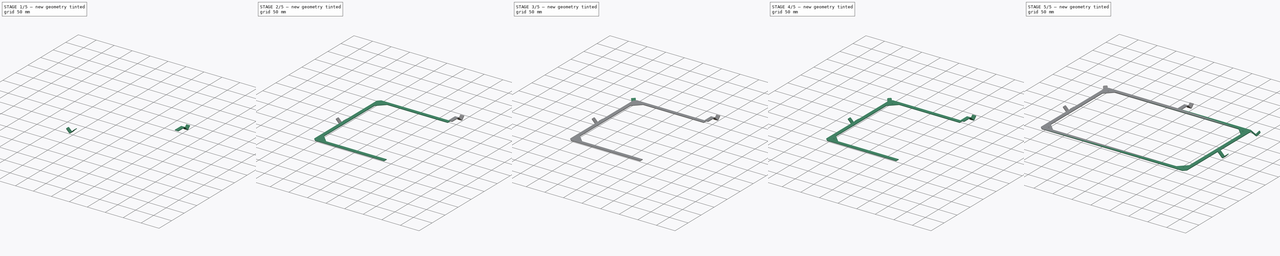
[diagram: build sequence overview — one tinted view per stage of 5, left to right]
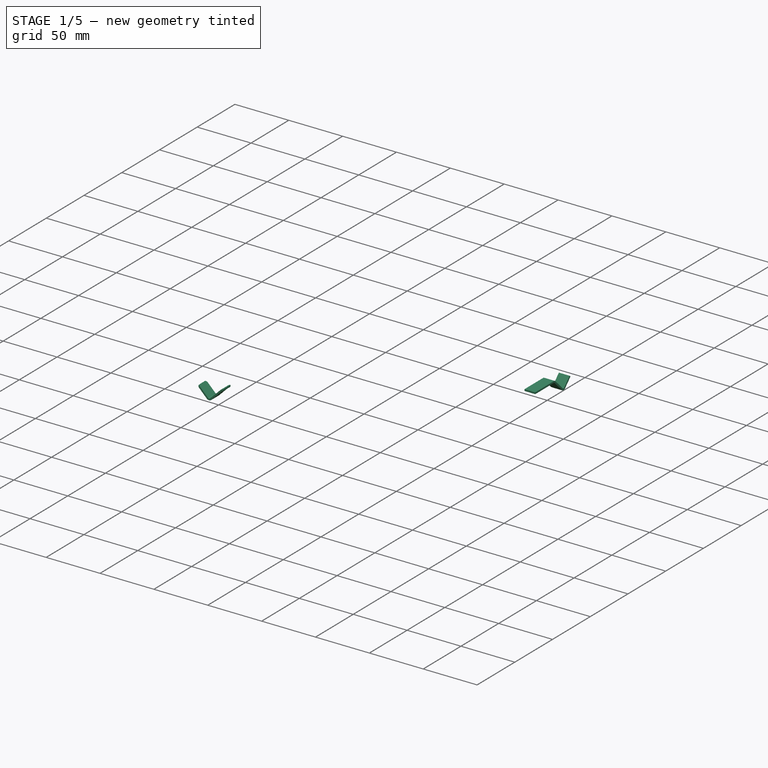
[diagram: stage 1 of 5 — iso view after this stage's code; geometry added in this stage tinted green]
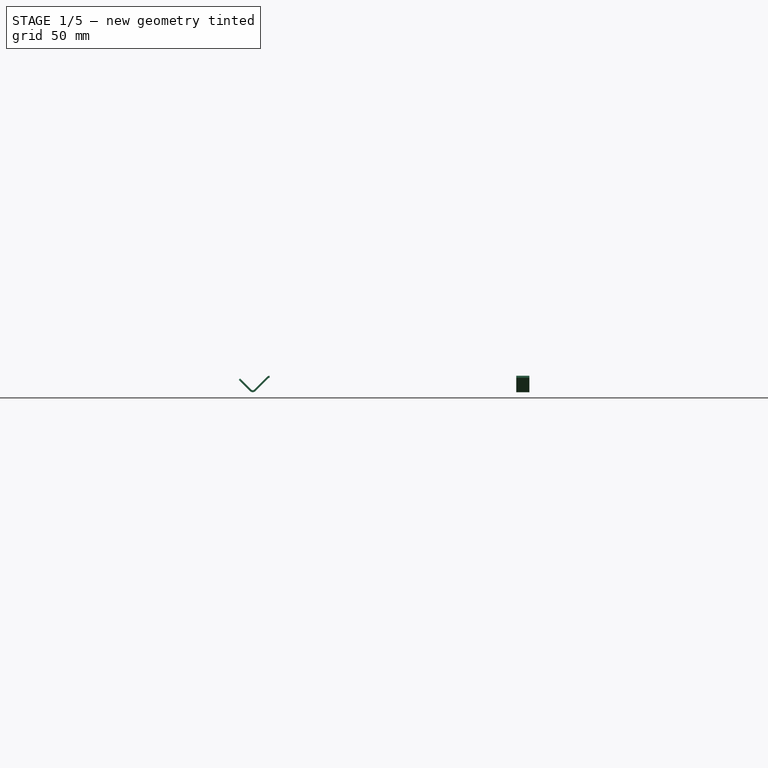
[diagram: stage 1 of 5 — front view after this stage's code; geometry added in this stage tinted green]
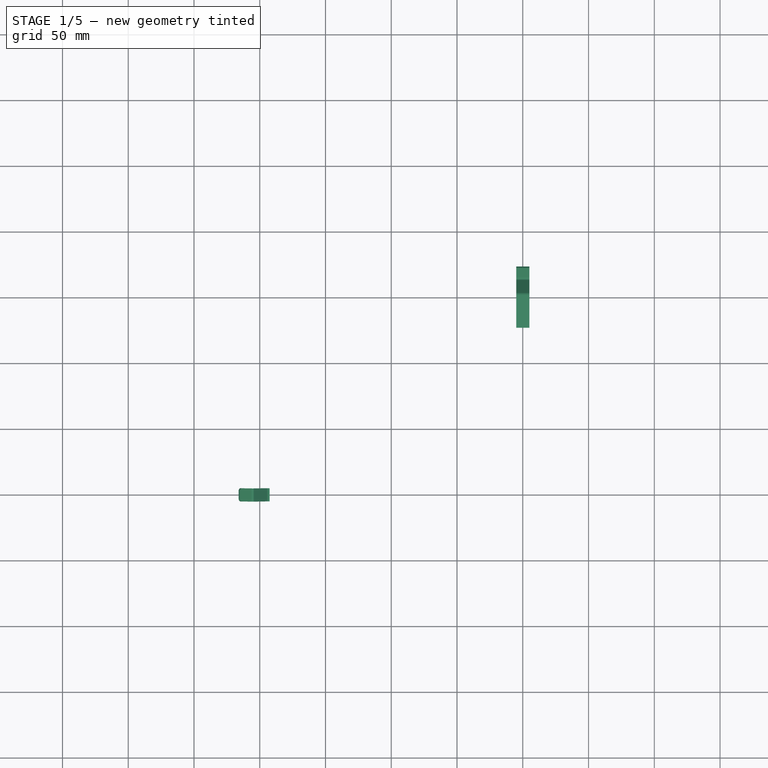
[diagram: stage 1 of 5 — top view after this stage's code; geometry added in this stage tinted green]
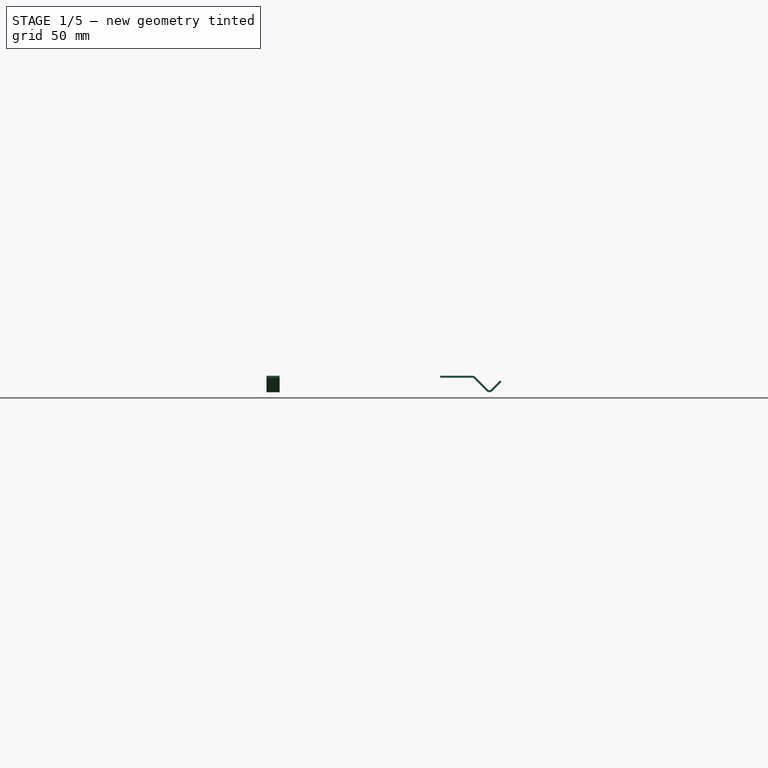
[diagram: stage 1 of 5 — right view after this stage's code; geometry added in this stage tinted green]
FCSTD DOCUMENT  (FreeCAD 0.14R3310 (Git))
Label: CHAPA SUPERIOR SUJETA TAPA
License: CC-BY 3.0
LicenseURL: http://creativecommons.org/licenses/by/3.0/
objects: Sketcher::SketchObject×7, PartDesign::Pad×5, Part::MultiFuse×3, PartDesign::Chamfer×2, PartDesign::Pocket×2, PartDesign::Fillet×2, Part::Mirroring×1
note: 29 computed .brp shape members not serialized (recipe doc carries the construction recipe); baked Part::Feature solids carry a one-line shape summary decoded from their .brp

FEATURE [Sketcher::SketchObject] Sketch005
  Placement = pos=(0,0,0) rot=(-1,0,0;4.71239rad)
  sketch-geometry (10):
    g0: LineSegment StartX=-192.5 StartY=1.5 StartZ=0 EndX=-192.5 EndY=0 EndZ=0
    g1: ArcOfCircle CenterX=-192.5 CenterY=-1.5 CenterZ=0 NormalX=0 NormalY=0 NormalZ=1 Radius=1.5 StartAngle=1.5708 EndAngle=2.3562
    g2: ArcOfCircle CenterX=-192.5 CenterY=-1.5 CenterZ=0 NormalX=0 NormalY=0 NormalZ=1 Radius=3 StartAngle=1.5708 EndAngle=2.35619
    g3: LineSegment StartX=-193.561 StartY=-0.439341 StartZ=0 EndX=-203.242 EndY=-10.121 EndZ=0
    g4: LineSegment StartX=-194.621 StartY=0.62132 StartZ=0 EndX=-204.303 EndY=-9.06039 EndZ=0
    g5: ArcOfCircle CenterX=-205.364 CenterY=-7.99972 CenterZ=0 NormalX=0 NormalY=0 NormalZ=1 Radius=1.5 StartAngle=3.92699 EndAngle=5.49778
    g6: LineSegment StartX=-206.424 StartY=-9.06038 StartZ=0 EndX=-214.985 EndY=-0.499437 EndZ=0
    g7: LineSegment StartX=-214.985 StartY=-0.499437 StartZ=0 EndX=-216.046 EndY=-1.5601 EndZ=0
    g8: LineSegment StartX=-216.046 StartY=-1.5601 StartZ=0 EndX=-207.485 EndY=-10.121 EndZ=0
    g9: ArcOfCircle CenterX=-205.364 CenterY=-7.99972 CenterZ=0 NormalX=0 NormalY=0 NormalZ=1 Radius=3 StartAngle=3.92699 EndAngle=5.49779
  constraints (32):
    c: Vertical(g0)
    c: DistanceX(g-2,g0) = -192.5
    c: DistanceY(g0) = -1.5
    c: PointOnObject(g0,g-1)
    c: Coincident(g1,g0)
    c: Tangent(g1,g-1)
    c: Radius(g1) = 1.5
    c: Coincident(g2,g1)
    c: Coincident(g2,g0)
    c: Coincident(g3,g1)
    c: Tangent(g1,g3)
    c: Angle(g3,g-1) = 2.35619
    c: Coincident(g4,g2)
    c: Parallel(g3,g4)
    c: Tangent(g2,g4)
    c: Distance(g4) = 13.692
    c: Coincident(g5,g4)
    c: Tangent(g5,g4)
    c: Coincident(g6,g5)
    c: Angle(g4,g6) = 1.5708
    c: Tangent(g6,g5)
    c: Radius(g5) = 1.5
    c: Distance(g6) = 12.107
    c: Coincident(g7,g6)
    c: Angle(g7,g6) = 1.5708
    c: Distance(g7) = 1.5
    c: Coincident(g8,g7)
    c: Parallel(g8,g6)
    c: Coincident(g9,g5)
    c: Tangent(g9,g8)
    c: Coincident(g9,g8)
    c: Coincident(g9,g3)
FEATURE [PartDesign::Pad] Pad003
  Length = 10
  Length2 = 100
  Midplane = true
  Placement = pos=(0,0,0) rot=(-1,0,0;4.71239rad)
  Sketch = -> Sketch005
  Type = 0
FEATURE [PartDesign::Fillet] Fillet001
  Base = -> Pad003 [Edge19,Edge18]
  Placement = pos=(0,0,0) rot=(-1,0,0;4.71239rad)
  Radius = 2
FEATURE [Sketcher::SketchObject] Sketch006
  Placement = pos=(0,0,0) rot=(0.57735,0.57735,0.57735;2.0944rad)
  sketch-geometry (12):
    g0: LineSegment StartX=127 StartY=1.5 StartZ=0 EndX=127 EndY=0 EndZ=0
    g1: LineSegment StartX=127 StartY=0 StartZ=0 EndX=151.636 EndY=0 EndZ=0
    g2: LineSegment StartX=127 StartY=1.5 StartZ=0 EndX=151.636 EndY=1.5 EndZ=0
    g3: ArcOfCircle CenterX=151.636 CenterY=-1.5 CenterZ=0 NormalX=0 NormalY=0 NormalZ=1 Radius=1.5 StartAngle=0.785398 EndAngle=1.5708
    g4: LineSegment StartX=152.697 StartY=-0.43934 StartZ=0 EndX=162.378 EndY=-10.121 EndZ=0
    g5: ArcOfCircle CenterX=151.636 CenterY=-1.5 CenterZ=0 NormalX=0 NormalY=0 NormalZ=1 Radius=3 StartAngle=0.785398 EndAngle=1.5708
    g6: LineSegment StartX=153.757 StartY=0.621321 StartZ=0 EndX=163.439 EndY=-9.06039 EndZ=0
    g7: ArcOfCircle CenterX=164.5 CenterY=-7.99972 CenterZ=0 NormalX=0 NormalY=0 NormalZ=1 Radius=1.5 StartAngle=3.92699 EndAngle=5.49779
    g8: ArcOfCircle CenterX=164.5 CenterY=-7.99972 CenterZ=0 NormalX=0 NormalY=0 NormalZ=1 Radius=3 StartAngle=3.92699 EndAngle=5.49779
    g9: LineSegment StartX=165.56 StartY=-9.06038 StartZ=0 EndX=172.621 EndY=-1.99992 EndZ=0
    g10: LineSegment StartX=166.621 StartY=-10.121 StartZ=0 EndX=173.681 EndY=-3.06058 EndZ=0
    g11: LineSegment StartX=173.681 StartY=-3.06058 StartZ=0 EndX=172.621 EndY=-1.99992 EndZ=0
  constraints (39):
    c: Vertical(g0)
    c: DistanceY(g0) = -1.5
    c: PointOnObject(g0,g-1)
    c: DistanceX(g-2,g0) = 127
    c: Horizontal(g1)
    c: Coincident(g1,g0)
    c: DistanceX(g1) = 24.636
    c: Coincident(g2,g0)
    c: Horizontal(g2)
    c: Equal(g2,g1)
    c: Coincident(g3,g1)
    c: Tangent(g3,g1)
    c: Coincident(g4,g3)
    c: Angle(g-1,g4) = 2.35619
    c: Tangent(g3,g4)
    c: Radius(g3) = 1.5
    c: Distance(g4) = 13.692
    c: Coincident(g5,g3)
    c: Coincident(g5,g2)
    c: Coincident(g6,g5)
    c: Equal(g6,g4)
    c: Parallel(g6,g4)
    c: Tangent(g5,g6)
    c: Coincident(g7,g6)
    c: Tangent(g7,g6)
    c: Coincident(g8,g7)
    c: Coincident(g8,g4)
    c: Radius(g7) = 1.5
    c: Angle(g7,g6) = 1.5708
    c: Coincident(g9,g7)
    c: Angle(g9,g6) = 1.5708
    c: Tangent(g7,g9)
    c: Distance(g9) = 9.985
    c: Coincident(g10,g8)
    c: Parallel(g9,g10)
    c: Equal(g10,g9)
    c: Tangent(g8,g10)
    c: Coincident(g11,g10)
    c: Coincident(g11,g9)
FEATURE [PartDesign::Pad] Pad004
  Length = 10
  Length2 = 100
  Midplane = true
  Placement = pos=(0,0,0) rot=(0.57735,0.57735,0.57735;2.0944rad)
  Sketch = -> Sketch006
  Type = 0
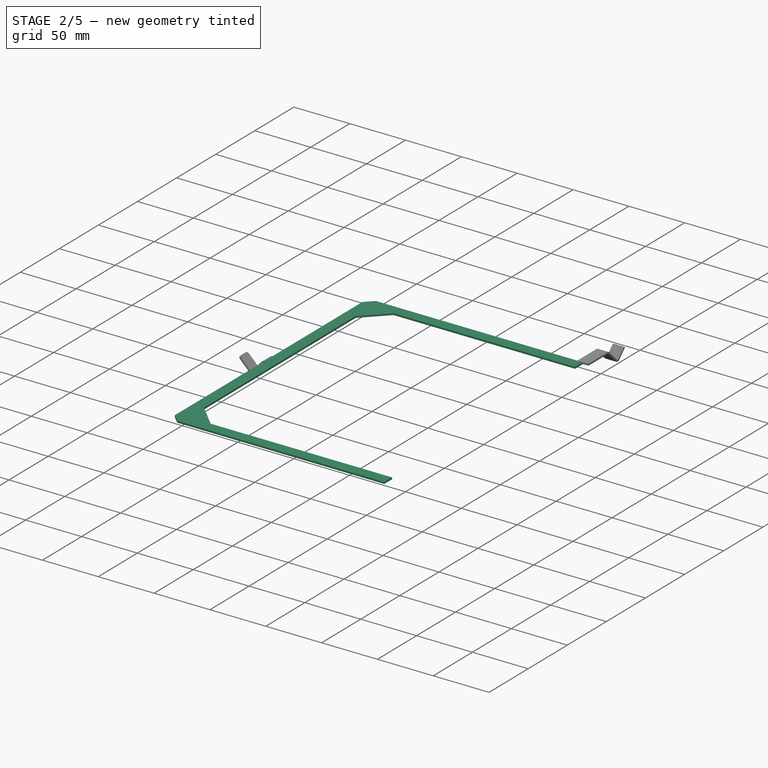
[diagram: stage 2 of 5 — iso view after this stage's code; geometry added in this stage tinted green]
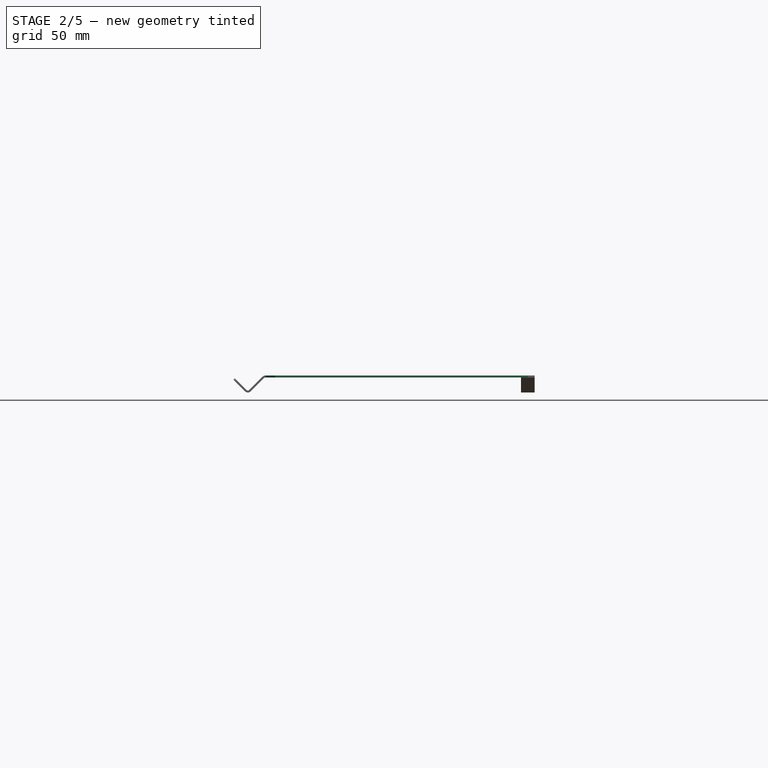
[diagram: stage 2 of 5 — front view after this stage's code; geometry added in this stage tinted green]
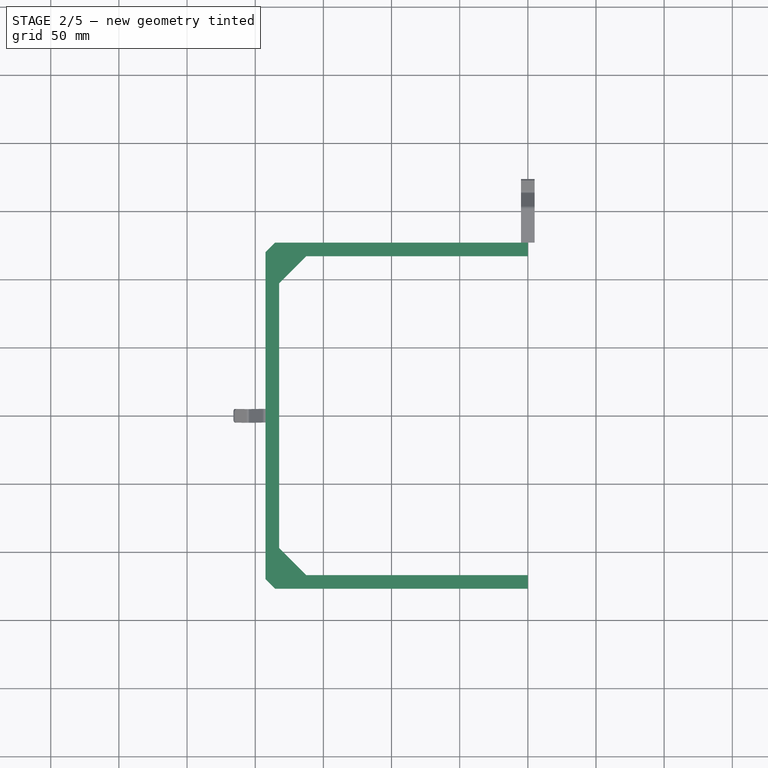
[diagram: stage 2 of 5 — top view after this stage's code; geometry added in this stage tinted green]
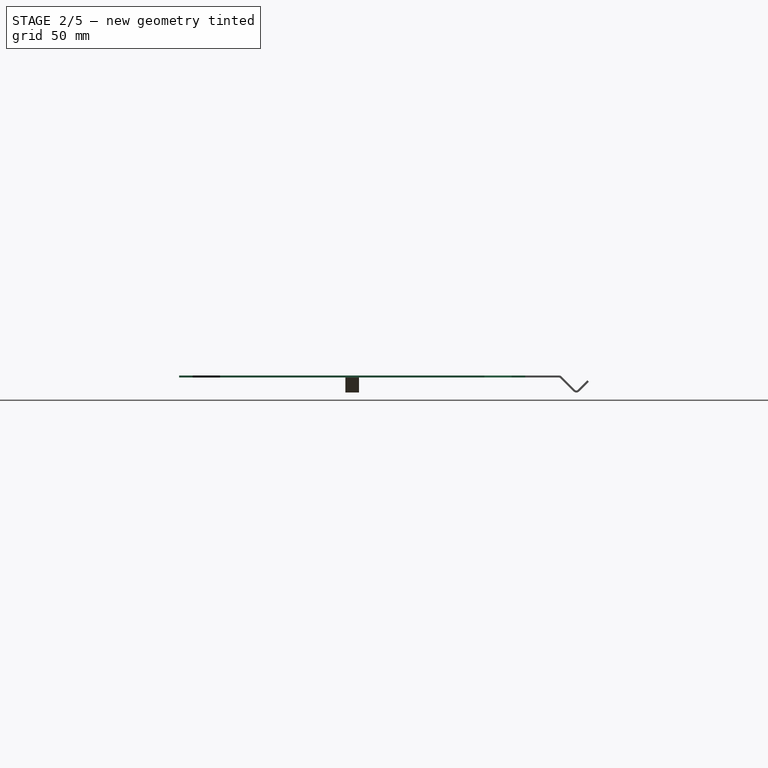
[diagram: stage 2 of 5 — right view after this stage's code; geometry added in this stage tinted green]
FEATURE [Sketcher::SketchObject] Sketch
  sketch-geometry (9):
    g0: LineSegment StartX=-192.5 StartY=127 StartZ=0 EndX=0 EndY=127 EndZ=0
    g1: LineSegment [constr] StartX=0 StartY=127 StartZ=0 EndX=0 EndY=-127 EndZ=0
    g2: LineSegment StartX=0 StartY=-127 StartZ=0 EndX=-192.5 EndY=-127 EndZ=0
    g3: LineSegment StartX=-192.5 StartY=-127 StartZ=0 EndX=-192.5 EndY=127 EndZ=0
    g4: LineSegment StartX=0 StartY=117 StartZ=0 EndX=-182.5 EndY=117 EndZ=0
    g5: LineSegment StartX=-182.5 StartY=117 StartZ=0 EndX=-182.5 EndY=-117 EndZ=0
    g6: LineSegment StartX=-182.5 StartY=-117 StartZ=0 EndX=0 EndY=-117 EndZ=0
    g7: LineSegment StartX=0 StartY=117 StartZ=0 EndX=0 EndY=127 EndZ=0
    g8: LineSegment StartX=0 StartY=-127 StartZ=0 EndX=0 EndY=-117 EndZ=0
  constraints (25):
    c: Coincident(g0,g1)
    c: Coincident(g1,g2)
    c: Coincident(g2,g3)
    c: Coincident(g3,g0)
    c: Horizontal(g0)
    c: Horizontal(g2)
    c: Vertical(g3)
    c: PointOnObject(g1,g-2)
    c: Symmetric(g1,g0,g-1)
    c: DistanceX(g0) = 192.5
    c: DistanceY(g3) = 254
    c: PointOnObject(g4,g1)
    c: Horizontal(g4)
    c: Coincident(g5,g4)
    c: Vertical(g5)
    c: Coincident(g6,g5)
    c: PointOnObject(g6,g1)
    c: Horizontal(g6)
    c: DistanceY(g5) = -234
    c: Symmetric(g4,g6,g-1)
    c: DistanceX(g4) = -182.5
    c: Coincident(g7,g4)
    c: Coincident(g7,g0)
    c: Coincident(g8,g1)
    c: Coincident(g8,g6)
FEATURE [PartDesign::Pad] Pad
  Length = 1.5
  Length2 = 100
  Sketch = -> Sketch
  Type = 0
FEATURE [PartDesign::Chamfer] Chamfer
  Base = -> Pad [Edge14,Edge17]
  Size = 20
FEATURE [PartDesign::Chamfer] Chamfer001
  Base = -> Chamfer [Edge28,Edge26]
  Size = 7.07
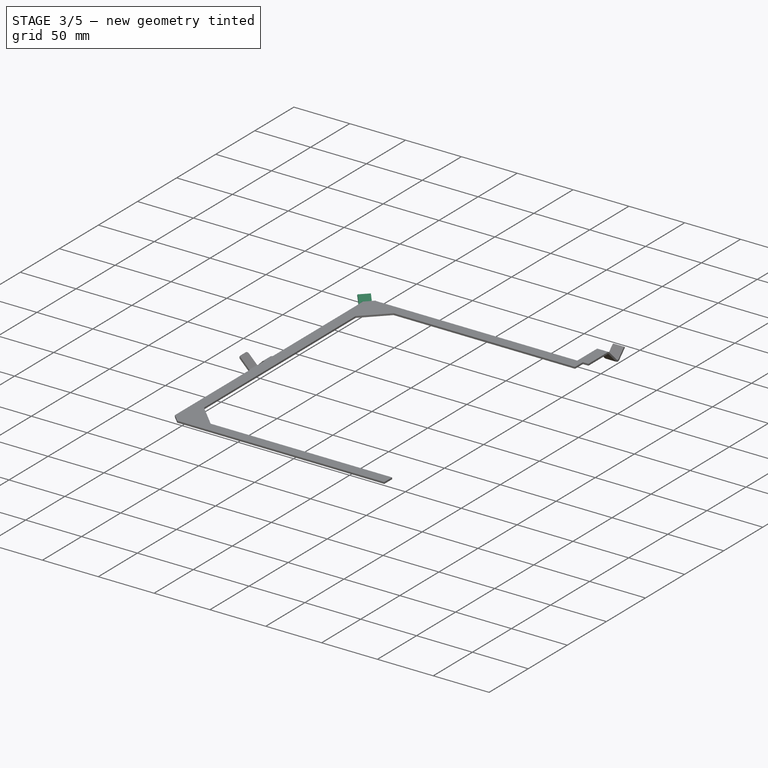
[diagram: stage 3 of 5 — iso view after this stage's code; geometry added in this stage tinted green]
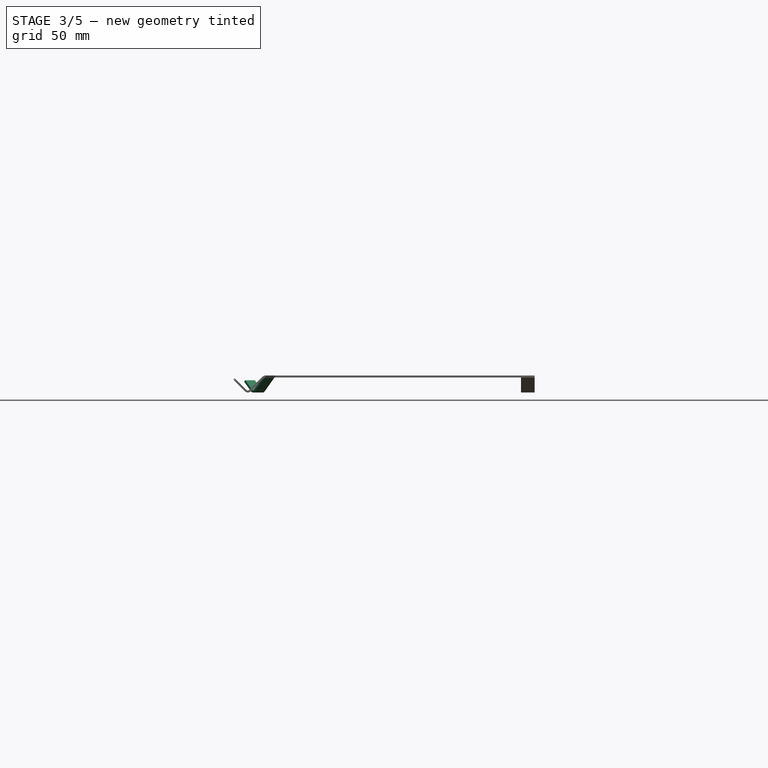
[diagram: stage 3 of 5 — front view after this stage's code; geometry added in this stage tinted green]
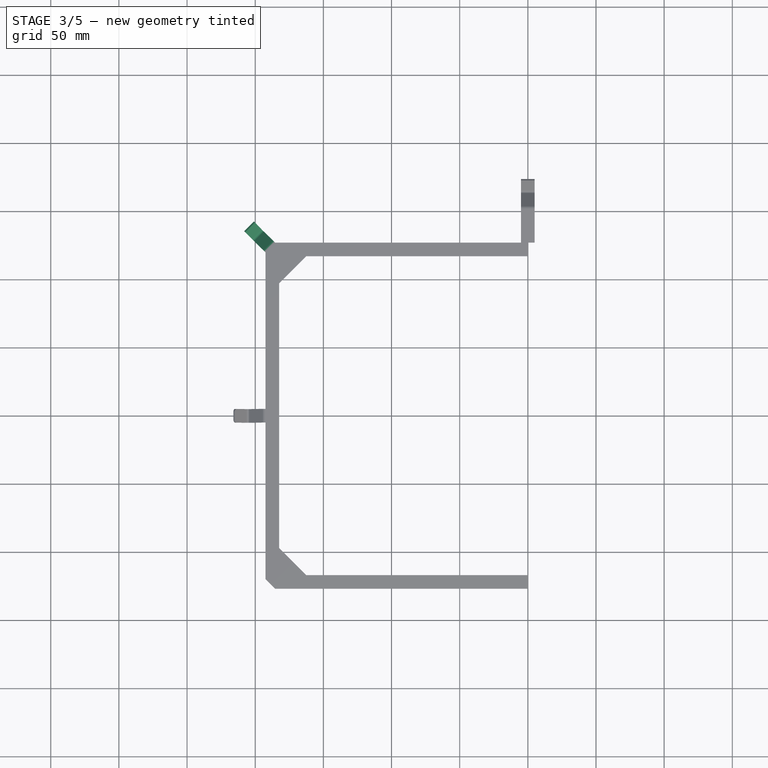
[diagram: stage 3 of 5 — top view after this stage's code; geometry added in this stage tinted green]
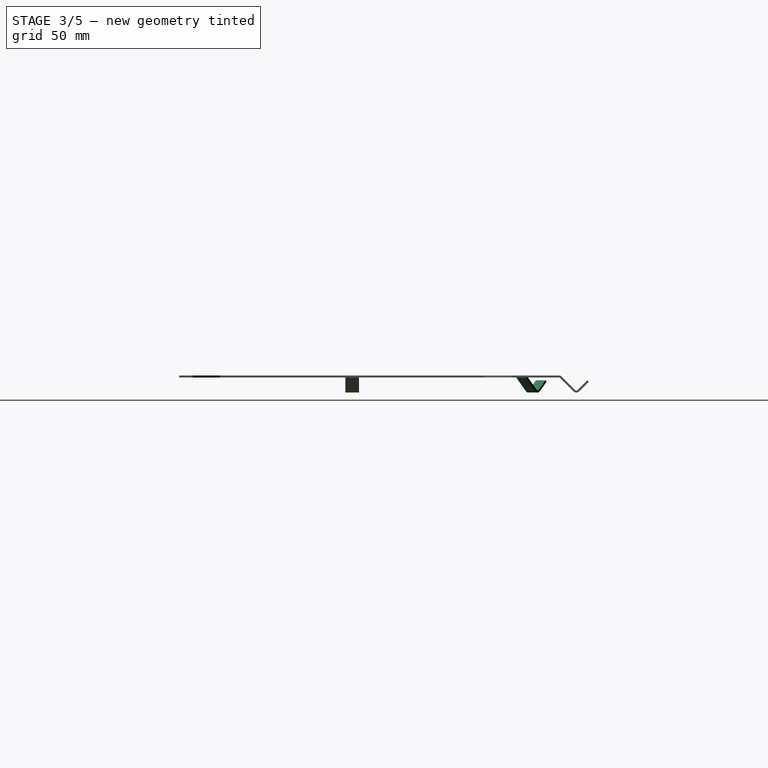
[diagram: stage 3 of 5 — right view after this stage's code; geometry added in this stage tinted green]
FEATURE [Sketcher::SketchObject] Sketch001
  ExternalGeometry = -> [Chamfer001]
  Placement = pos=(-156.215,156.215,0) rot=(-0.281085,0.678598,0.678598;3.68962rad)
  Support = -> Chamfer001 [Face3]
  sketch-geometry (4):
    g0: LineSegment StartX=41.3162 StartY=0 StartZ=0 EndX=51.3162 EndY=0 EndZ=0
    g1: LineSegment StartX=51.3162 StartY=0 StartZ=0 EndX=51.3162 EndY=1.5 EndZ=0
    g2: LineSegment StartX=51.3162 StartY=1.5 StartZ=0 EndX=41.3162 EndY=1.5 EndZ=0
    g3: LineSegment StartX=41.3162 StartY=1.5 StartZ=0 EndX=41.3162 EndY=0 EndZ=0
  constraints (11):
    c: Coincident(g0,g1)
    c: Coincident(g1,g2)
    c: Coincident(g2,g3)
    c: Coincident(g3,g0)
    c: Horizontal(g0)
    c: Horizontal(g2)
    c: Vertical(g1)
    c: Vertical(g3)
    c: Coincident(g0,g-3)
    c: DistanceX(g0) = 10
    c: Coincident(g-3,g2)
FEATURE [PartDesign::Pad] Pad001
  Length = 1.5
  Length2 = 100
  Sketch = -> Sketch001
  Type = 0
FEATURE [Sketcher::SketchObject] Sketch002
  ExternalGeometry = -> [Pad001]
  Placement = pos=(-29.215,-29.215,0) rot=(0.281085,0.678598,0.678598;2.59356rad)
  Support = -> Pad001 [Face3]
  sketch-geometry (3):
    g0: LineSegment StartX=220.921 StartY=1.5 StartZ=0 EndX=225.921 EndY=-3.5 EndZ=0
    g1: LineSegment StartX=220.921 StartY=1.5 StartZ=0 EndX=225.921 EndY=1.5 EndZ=0
    g2: LineSegment StartX=225.921 StartY=1.5 StartZ=0 EndX=225.921 EndY=-3.5 EndZ=0
  constraints (8):
    c: Coincident(g0,g-3)
    c: Coincident(g1,g0)
    c: Horizontal(g1)
    c: Coincident(g2,g1)
    c: Coincident(g2,g0)
    c: Vertical(g2)
    c: DistanceX(g1) = 5
    c: DistanceY(g2) = -5
FEATURE [PartDesign::Pocket] Pocket
  Length = 10
  Sketch = -> Sketch002
  Type = 0
FEATURE [Sketcher::SketchObject] Sketch003
  ExternalGeometry = -> [Pocket]
  Placement = pos=(-29.215,-29.215,0) rot=(0.281085,0.678598,0.678598;2.59356rad)
  Support = -> Pocket [Face6]
  sketch-geometry (10):
    g0: LineSegment StartX=223.043 StartY=0.621321 StartZ=0 EndX=232.724 EndY=-9.06038 EndZ=0
    g1: ArcOfCircle CenterX=220.921 CenterY=-1.5 CenterZ=0 NormalX=0 NormalY=0 NormalZ=1 Radius=3 StartAngle=0.785399 EndAngle=1.5708
    g2: ArcOfCircle CenterX=220.921 CenterY=-1.5 CenterZ=0 NormalX=0 NormalY=0 NormalZ=1 Radius=1.5 StartAngle=0.785398 EndAngle=1.5708
    g3: LineSegment StartX=221.982 StartY=-0.43934 StartZ=0 EndX=231.664 EndY=-10.121 EndZ=0
    g4: ArcOfCircle CenterX=233.785 CenterY=-7.99972 CenterZ=0 NormalX=0 NormalY=0 NormalZ=1 Radius=1.5 StartAngle=3.92699 EndAngle=5.49779
    g5: LineSegment StartX=234.846 StartY=-9.06038 StartZ=0 EndX=241.906 EndY=-1.99992 EndZ=0
    g6: LineSegment StartX=241.906 StartY=-1.99992 StartZ=0 EndX=242.967 EndY=-3.06058 EndZ=0
    g7: LineSegment StartX=242.967 StartY=-3.06058 StartZ=0 EndX=235.906 EndY=-10.121 EndZ=0
    g8: ArcOfCircle CenterX=233.785 CenterY=-7.99972 CenterZ=0 NormalX=0 NormalY=0 NormalZ=1 Radius=3 StartAngle=3.92699 EndAngle=5.49779
    g9: LineSegment StartX=220.921 StartY=1.5 StartZ=0 EndX=220.921 EndY=-5.1e-11 EndZ=0
  constraints (31):
    c: Coincident(g1,g-3)
    c: Tangent(g-4,g1)
    c: Coincident(g0,g1)
    c: Tangent(g0,g1)
    c: Angle(g-3,g0) = 0.785398
    c: Radius(g1) = 3
    c: Coincident(g2,g-3)
    c: Radius(g2) = 1.5
    c: Parallel(g3,g0)
    c: Coincident(g2,g3)
    c: Tangent(g2,g3)
    c: Distance(g2,g0) = 1.5
    c: Distance(g0) = 13.692
    c: Coincident(g4,g0)
    c: Tangent(g4,g0)
    c: Coincident(g5,g4)
    c: Angle(g5,g0) = 1.5708
    c: Tangent(g4,g5)
    c: Radius(g4) = 1.5
    c: Distance(g5) = 9.985
    c: Coincident(g6,g5)
    c: Angle(g5,g6) = 1.5708
    c: Distance(g6) = 1.5
    c: Parallel(g7,g5)
    c: Coincident(g7,g6)
    c: Coincident(g8,g4)
    c: Coincident(g8,g7)
    c: Tangent(g8,g7)
    c: Coincident(g3,g8)
    c: Coincident(g9,g1)
    c: Coincident(g9,g2)
FEATURE [PartDesign::Pad] Pad002
  Length = 10
  Length2 = 100
  Reversed = true
  Sketch = -> Sketch003
  Type = 0
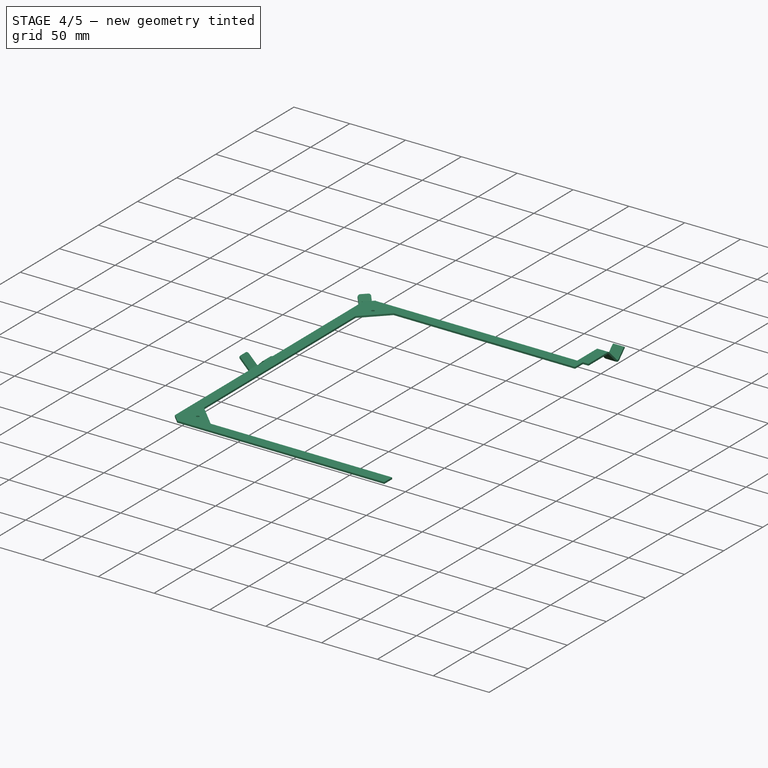
[diagram: stage 4 of 5 — iso view after this stage's code; geometry added in this stage tinted green]
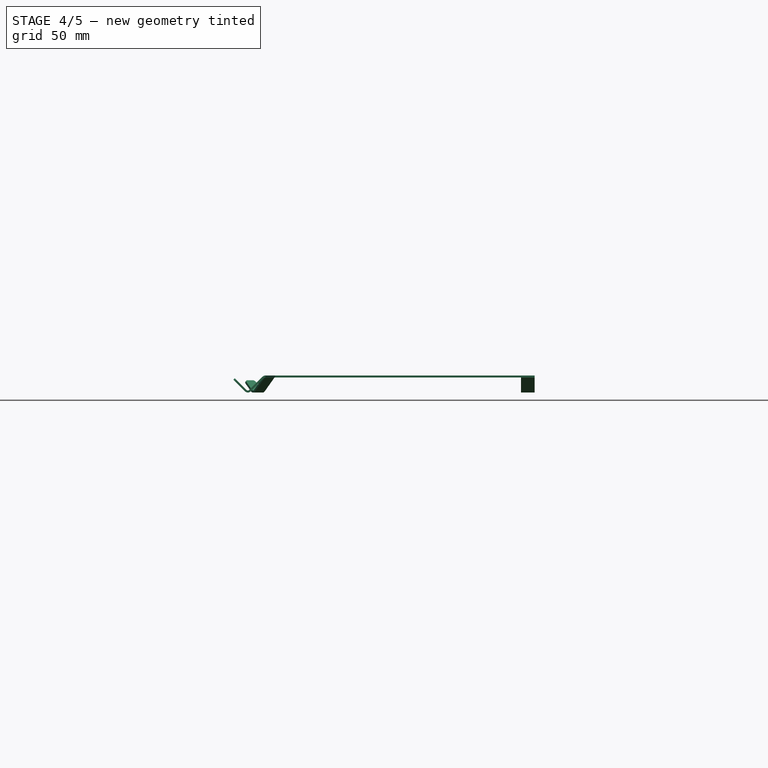
[diagram: stage 4 of 5 — front view after this stage's code; geometry added in this stage tinted green]
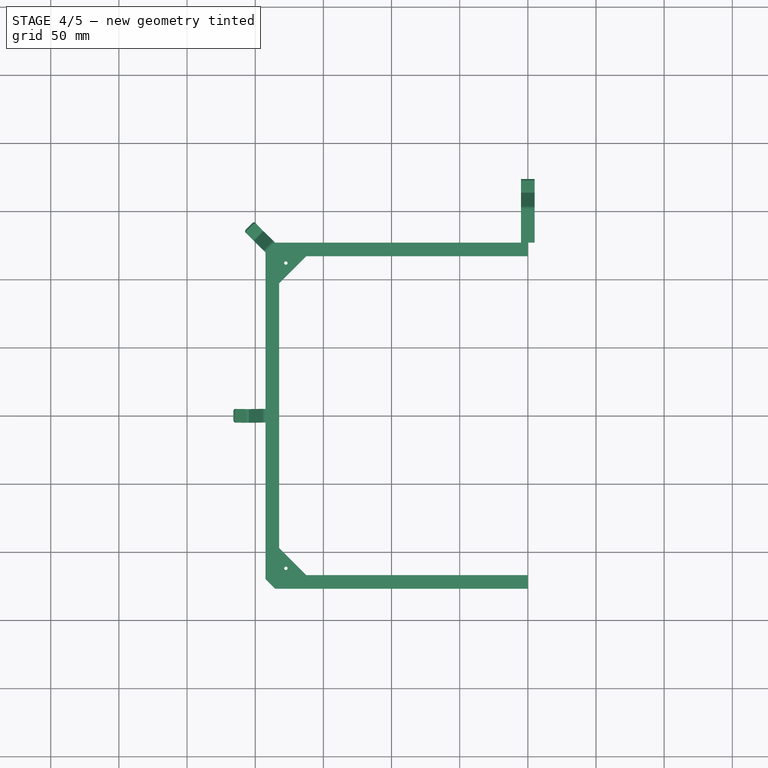
[diagram: stage 4 of 5 — top view after this stage's code; geometry added in this stage tinted green]
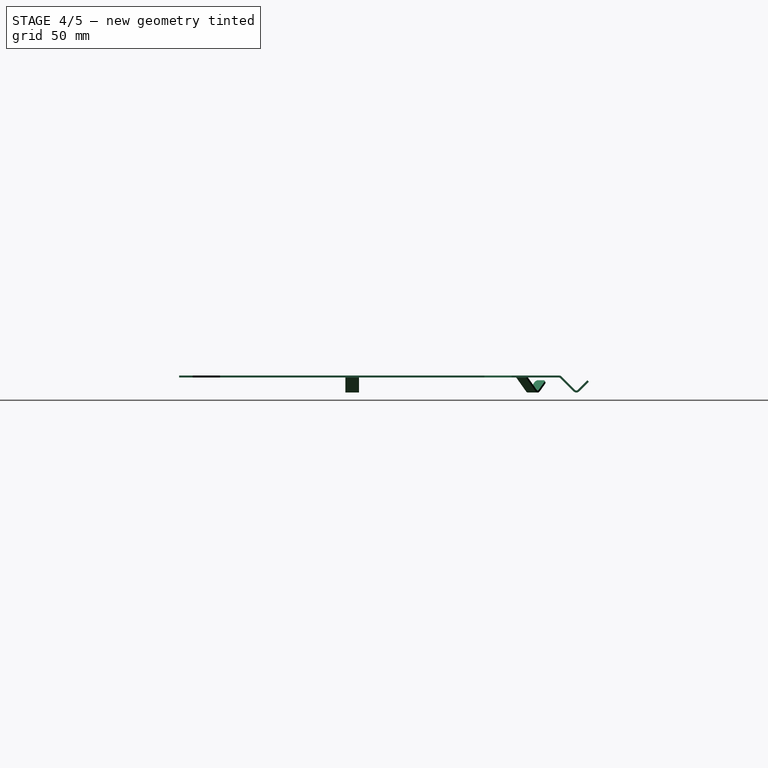
[diagram: stage 4 of 5 — right view after this stage's code; geometry added in this stage tinted green]
FEATURE [PartDesign::Fillet] Fillet
  Base = -> Pad002 [Edge60,Edge61]
  Radius = 2
FEATURE [Sketcher::SketchObject] Sketch004
  ExternalGeometry = -> [Fillet]
  Placement = pos=(0,0,1.5) rot=(0,0,1;0rad)
  Support = -> Fillet [Face18]
  sketch-geometry (2):
    g0: Circle CenterX=-177.5 CenterY=112 CenterZ=0 NormalX=0 NormalY=0 NormalZ=1 Radius=1.23
    g1: Circle CenterX=-177.5 CenterY=-112 CenterZ=0 NormalX=0 NormalY=0 NormalZ=1 Radius=1.23
  constraints (5):
    c: Distance(g0,g-3) = 15
    c: Distance(g0,g-4) = 15
    c: Radius(g0) = 1.23
    c: Symmetric(g1,g0,g-1)
    c: Equal(g1,g0)
FEATURE [PartDesign::Pocket] Pocket001
  Length = 5
  Sketch = -> Sketch004
  Type = 0
FEATURE [Part::MultiFuse] Fusion
  Shapes = -> [Fillet001,Pocket001]
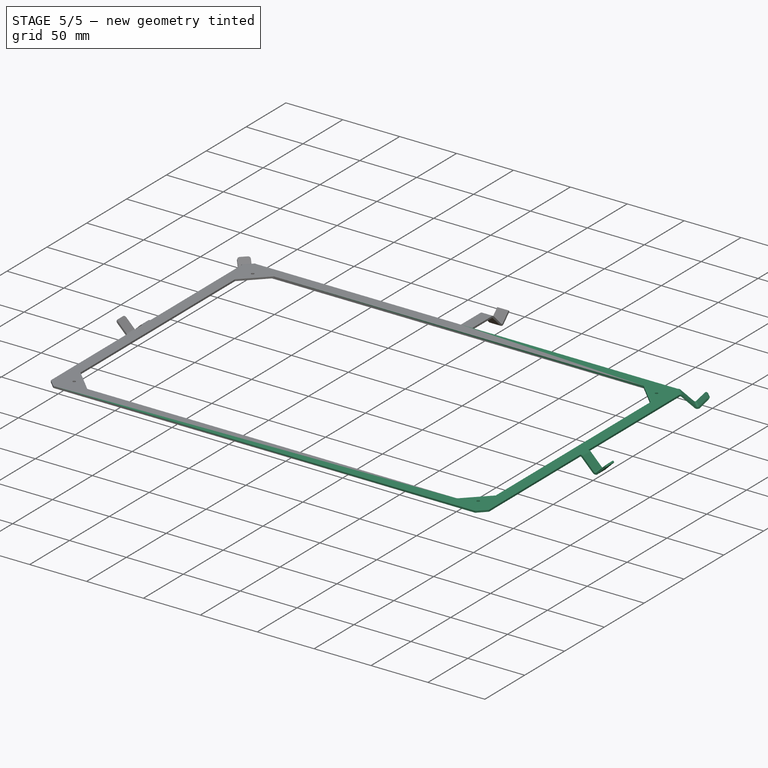
[diagram: stage 5 of 5 — iso view after this stage's code; geometry added in this stage tinted green]
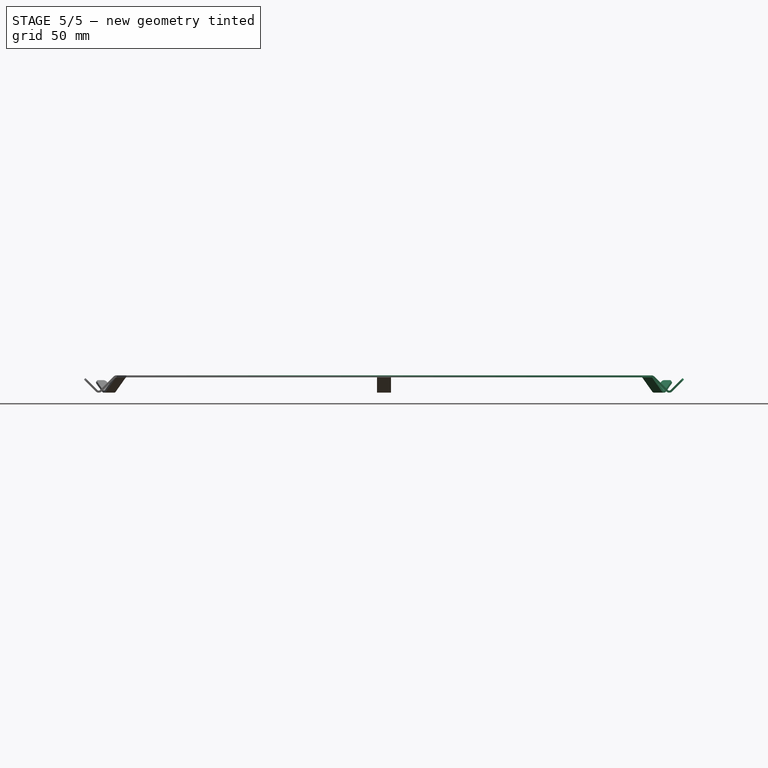
[diagram: stage 5 of 5 — front view after this stage's code; geometry added in this stage tinted green]
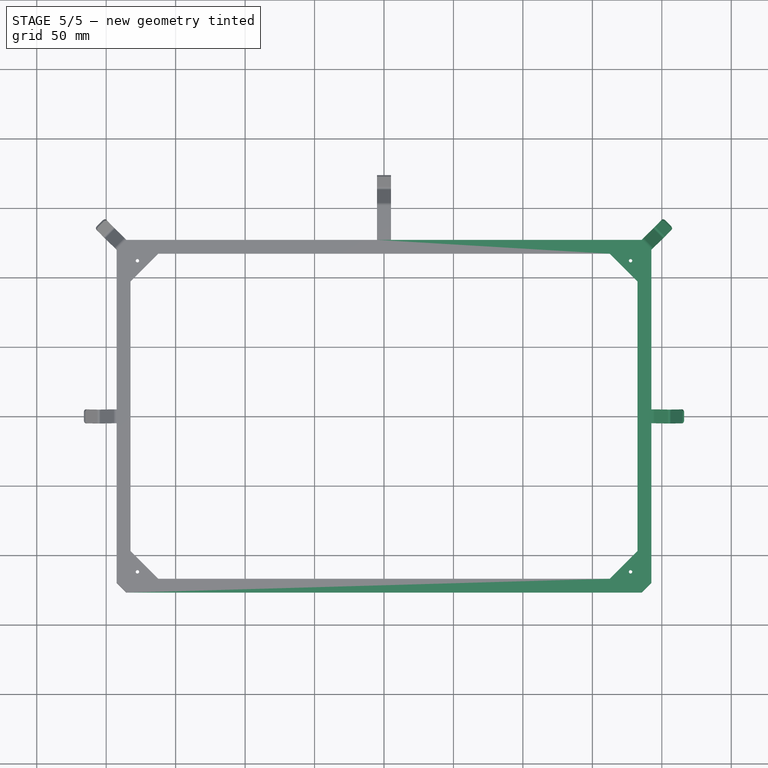
[diagram: stage 5 of 5 — top view after this stage's code; geometry added in this stage tinted green]
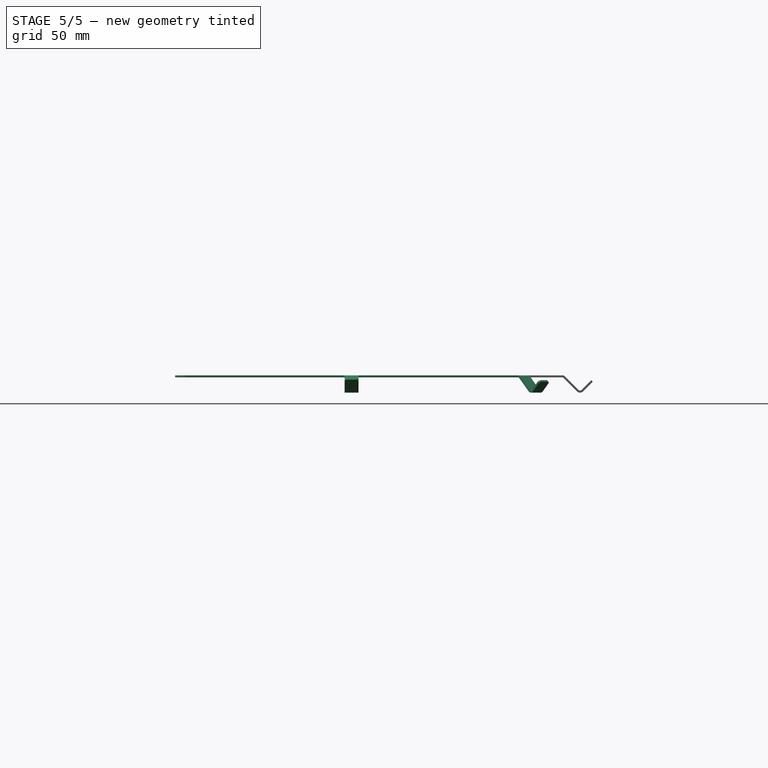
[diagram: stage 5 of 5 — right view after this stage's code; geometry added in this stage tinted green]
FEATURE [Part::Mirroring] Part__Mirroring  label="Fusion (Mirror #1)"
  Base = (0,0,0)
  Normal = (1,0,0)
  Source = -> Fusion
FEATURE [Part::MultiFuse] Fusion001
  Shapes = -> [Part__Mirroring,Fusion]
FEATURE [Part::MultiFuse] Fusion002
  Shapes = -> [Pad004,Fusion001]
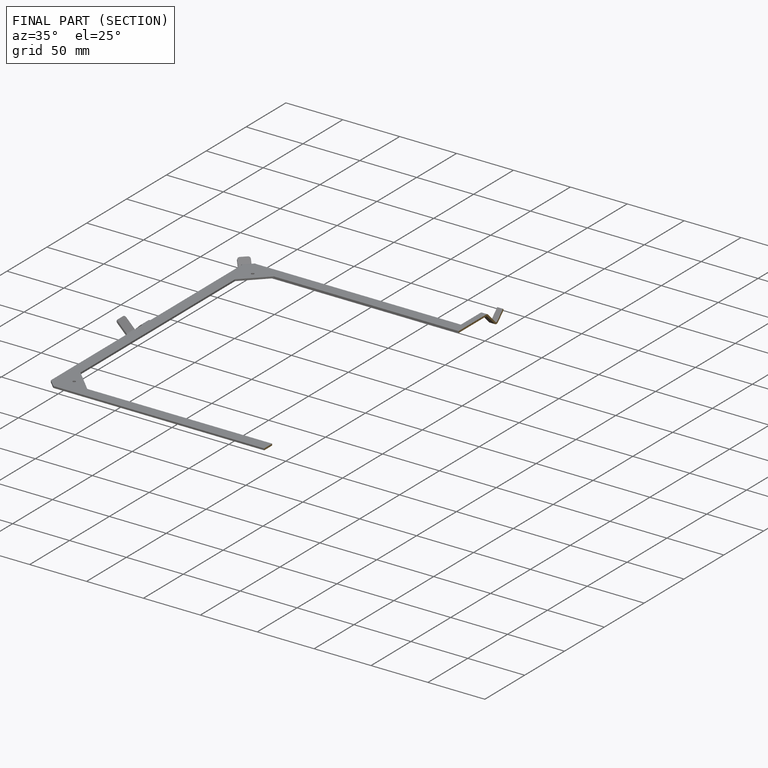
[diagram: finished part — half-section view (interior)]
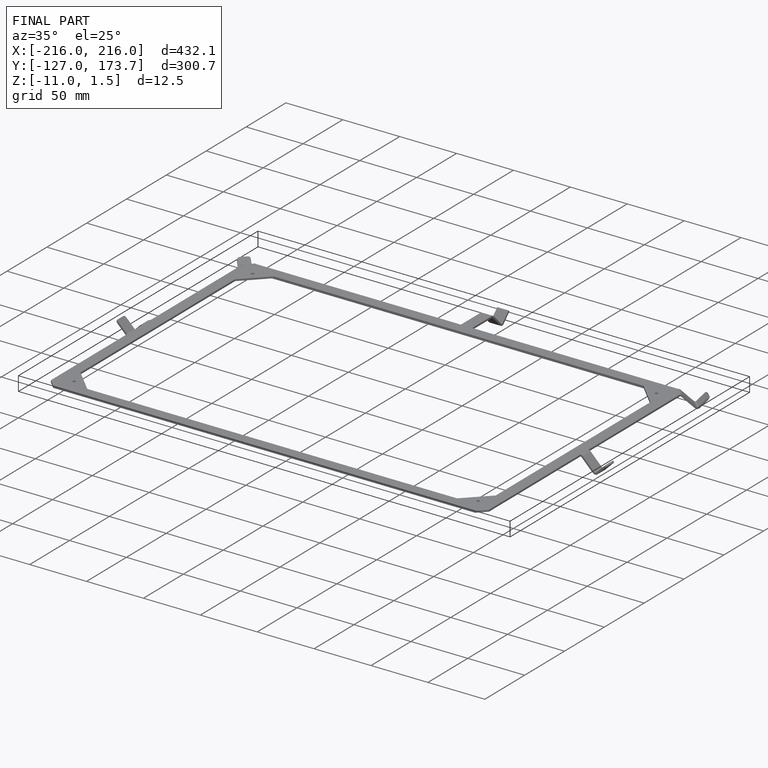
[diagram: finished part — iso view with bounding-box wireframe]
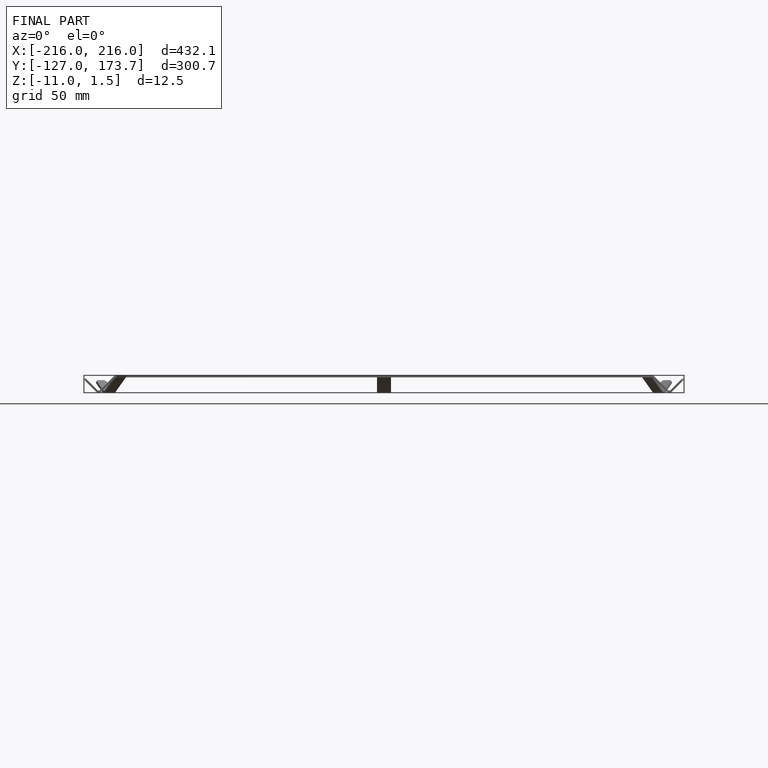
[diagram: finished part — front view with bounding-box wireframe]
